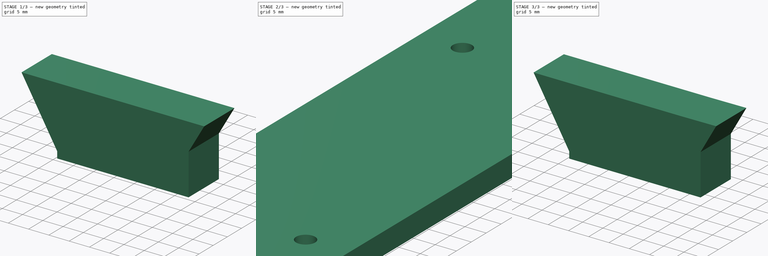
[diagram: build sequence overview — one tinted view per stage of 3, left to right]
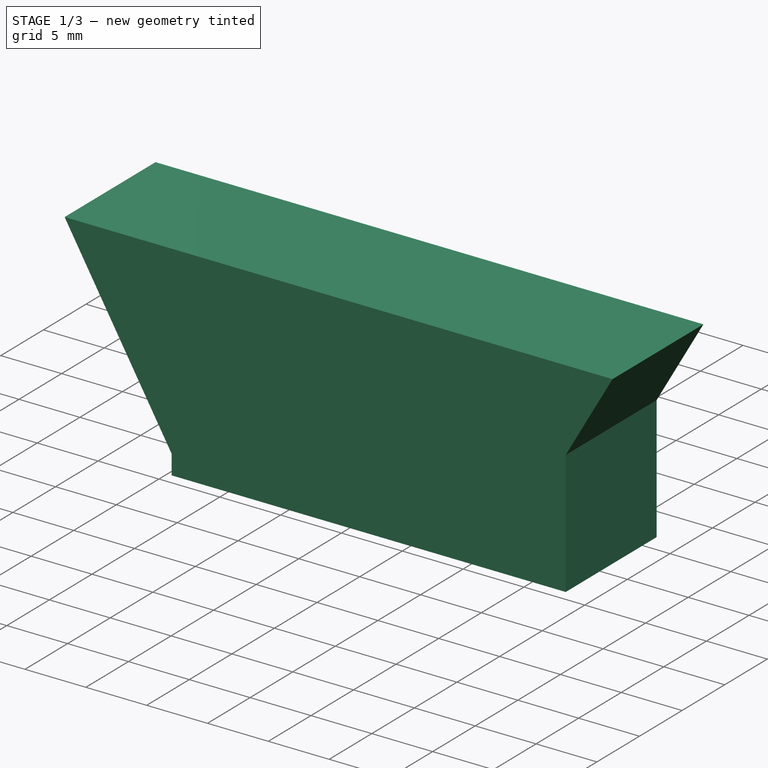
[diagram: stage 1 of 3 — iso view after this stage's code; geometry added in this stage tinted green]
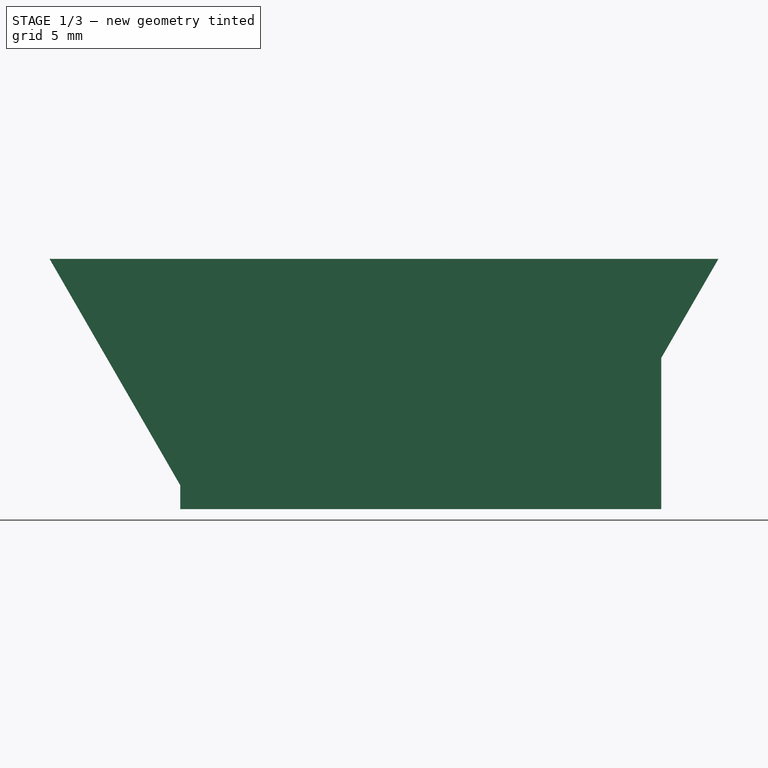
[diagram: stage 1 of 3 — front view after this stage's code; geometry added in this stage tinted green]
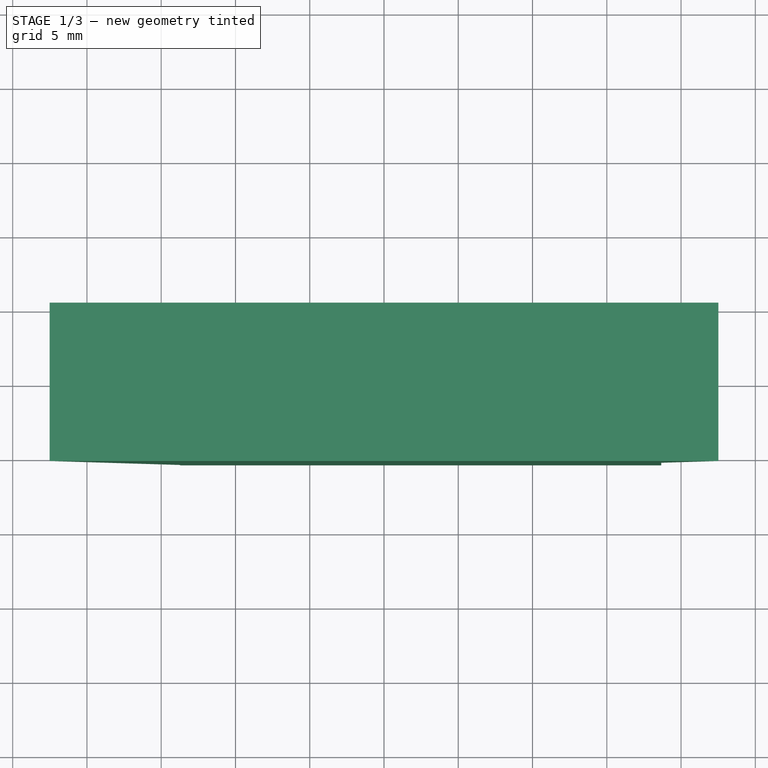
[diagram: stage 1 of 3 — top view after this stage's code; geometry added in this stage tinted green]
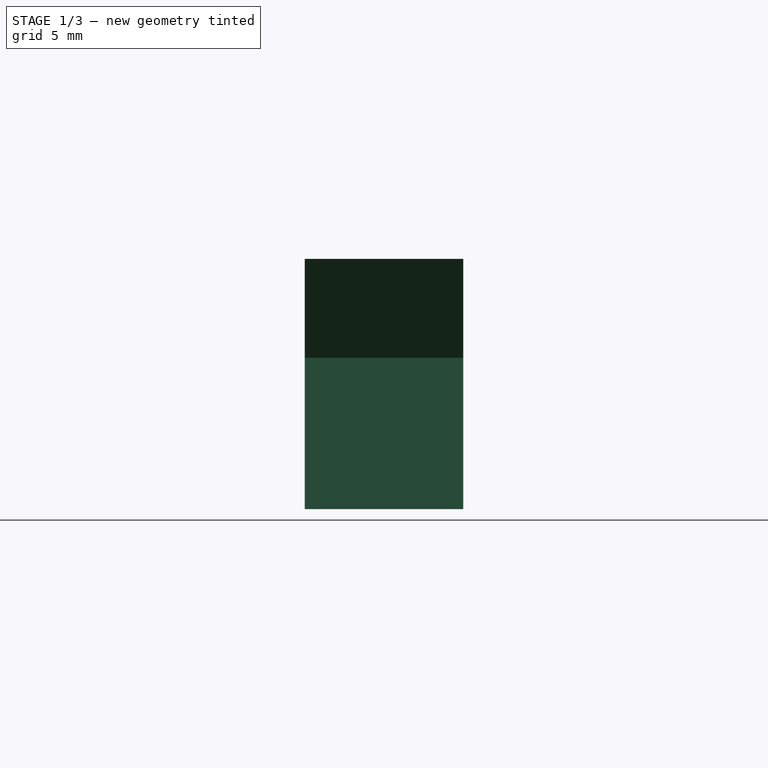
[diagram: stage 1 of 3 — right view after this stage's code; geometry added in this stage tinted green]
FCSTD DOCUMENT  (FreeCAD 1.0R39109 (Git))
Label: Telrad plate_New
License: All rights reserved
LicenseURL: https://en.wikipedia.org/wiki/All_rights_reserved
objects: Sketcher::SketchObject×6, PartDesign::Pad×5, PartDesign::Body×2, PartDesign::Hole×1
note: 32 computed .brp shape members not serialized (recipe doc carries the construction recipe); baked Part::Feature solids carry a one-line shape summary decoded from their .brp

FEATURE [PartDesign::Body] Body
  AllowCompound = false
  Group = -> [Sketch,Pad,Sketch005,Hole]
  Origin = -> Origin
  Tip = -> Hole
FEATURE [Sketcher::SketchObject] Sketch007
  ArcFitTolerance = 1e-06
  FullyConstrained = true
  MakeInternals = false
  MapMode = 5
  Placement = pos=(0,0,0) rot=(1,0,0;1.5708rad)
  sketch-geometry (8):
    g0: LineSegment StartX=-13.716 StartY=1.6002 StartZ=0 EndX=-13.716 EndY=16.8402 EndZ=0
    g1: LineSegment StartX=-13.716 StartY=16.8402 StartZ=0 EndX=-22.5148 EndY=16.8402 EndZ=0
    g2: LineSegment StartX=-22.5148 StartY=16.8402 StartZ=0 EndX=-13.716 EndY=1.6002 EndZ=0
    g3: Circle [constr] CenterX=-18.1154 CenterY=9.2202 CenterZ=0 NormalX=0 NormalY=0 NormalZ=1 AngleXU=0 Radius=8.79882
    g4: LineSegment StartX=13.716 StartY=1.6002 StartZ=0 EndX=22.5148 EndY=16.8402 EndZ=0
    g5: LineSegment StartX=22.5148 StartY=16.8402 StartZ=0 EndX=13.716 EndY=16.8402 EndZ=0
    g6: LineSegment StartX=13.716 StartY=16.8402 StartZ=0 EndX=13.716 EndY=1.6002 EndZ=0
    g7: Circle [constr] CenterX=18.1154 CenterY=9.2202 CenterZ=0 NormalX=0 NormalY=0 NormalZ=1 AngleXU=0 Radius=8.79882
  constraints (24):
    c: Coincident(g0,g1)
    c: Coincident(g1,g2)
    c: Coincident(g2,g0)
    c: PointOnObject(g0,g3)
    c: PointOnObject(g1,g3)
    c: PointOnObject(g2,g3)
    c: Angle(g1,g0) = 1.5708
    c: Angle(g0,g2) = 0.523599
    c: DistanceX(g0,g-1) = 13.716
    c: DistanceX(g0,g-1) = 13.716
    c: DistanceY(g-1,g0) = 1.6002
    c: Distance(g0,g0) = 15.24
    c: Coincident(g4,g5)
    c: Coincident(g5,g6)
    c: Coincident(g6,g4)
    c: PointOnObject(g4,g7)
    c: PointOnObject(g5,g7)
    c: PointOnObject(g6,g7)
    c: Angle(g6,g5) = 1.5708
    c: Angle(g4,g6) = 0.523599
    c: Distance(g6,g6) = 15.24
    c: DistanceX(g-1,g5) = 13.716
    c: DistanceX(g-1,g4) = 13.716
    c: DistanceY(g-1,g4) = 1.6002
FEATURE [Sketcher::SketchObject] Sketch006
  ArcFitTolerance = 1e-06
  ExternalGeometry = -> [Sketch007]
  FullyConstrained = true
  MakeInternals = false
  MapMode = 5
  Placement = pos=(0,0,0) rot=(1,0,0;1.5708rad)
  sketch-geometry (4):
    g0: LineSegment StartX=-13.716 StartY=16.8402 StartZ=0 EndX=-13.716 EndY=0 EndZ=0
    g1: LineSegment StartX=-13.716 StartY=0 StartZ=0 EndX=18.669 EndY=0 EndZ=0
    g2: LineSegment StartX=18.669 StartY=0 StartZ=0 EndX=18.669 EndY=16.8402 EndZ=0
    g3: LineSegment StartX=18.669 StartY=16.8402 StartZ=0 EndX=-13.716 EndY=16.8402 EndZ=0
  constraints (12):
    c: Coincident(g0,g1)
    c: Coincident(g1,g2)
    c: Coincident(g2,g3)
    c: Coincident(g3,g0)
    c: Vertical(g0)
    c: Vertical(g2)
    c: Horizontal(g1)
    c: Horizontal(g3)
    c: PointOnObject(g1,g-1)
    c: DistanceY(g-3,g0) = 0
    c: Distance(g3) = 32.385
    c: DistanceX(g0,g-1) = 13.716
FEATURE [PartDesign::Pad] Pad005
  Direction = (0,-1,0)
  Length = 10.668
  Length2 = 10
  Midplane = true
  Placement = pos=(0,0,0) rot=(1,0,0;1.5708rad)
  Profile = -> Sketch006
  ReferenceAxis = -> Sketch006 [N_Axis]
  Refine = true
  Suppressed = false
  Type = 0
FEATURE [PartDesign::Pad] Pad006
  BaseFeature = -> Pad005
  Direction = (0,-1,0)
  Length = 10.668
  Length2 = 10
  Midplane = true
  Placement = pos=(0,0,0) rot=(1,0,0;1.5708rad)
  Profile = -> Sketch007
  ReferenceAxis = -> Sketch007 [N_Axis]
  Refine = true
  Suppressed = false
  Type = 0
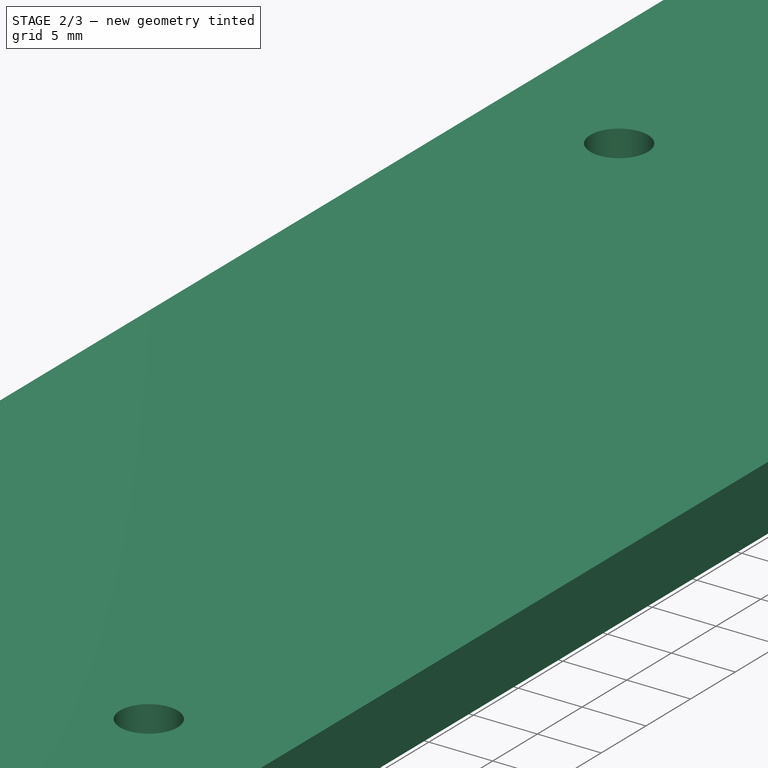
[diagram: stage 2 of 3 — iso view after this stage's code; geometry added in this stage tinted green]
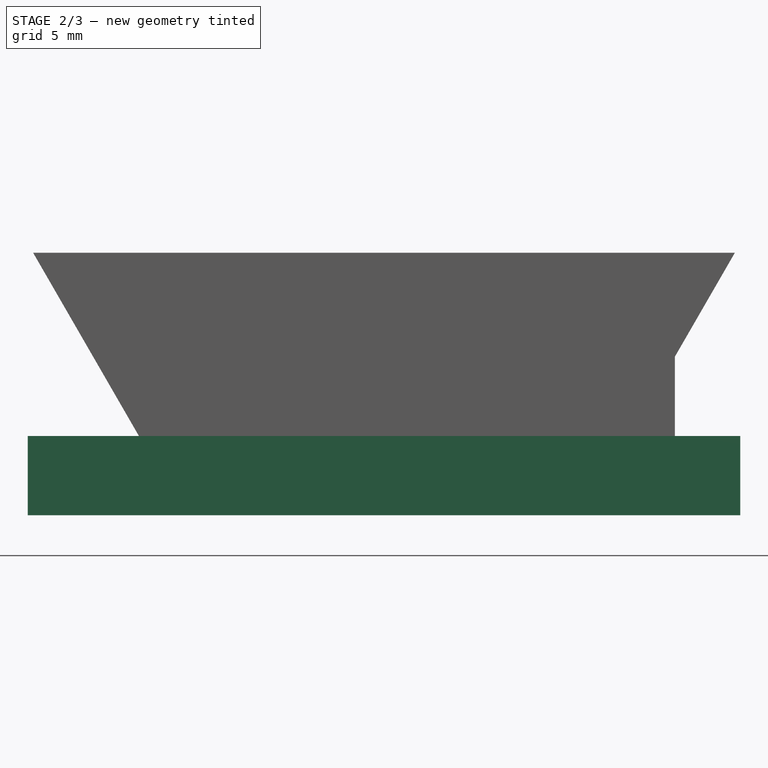
[diagram: stage 2 of 3 — front view after this stage's code; geometry added in this stage tinted green]
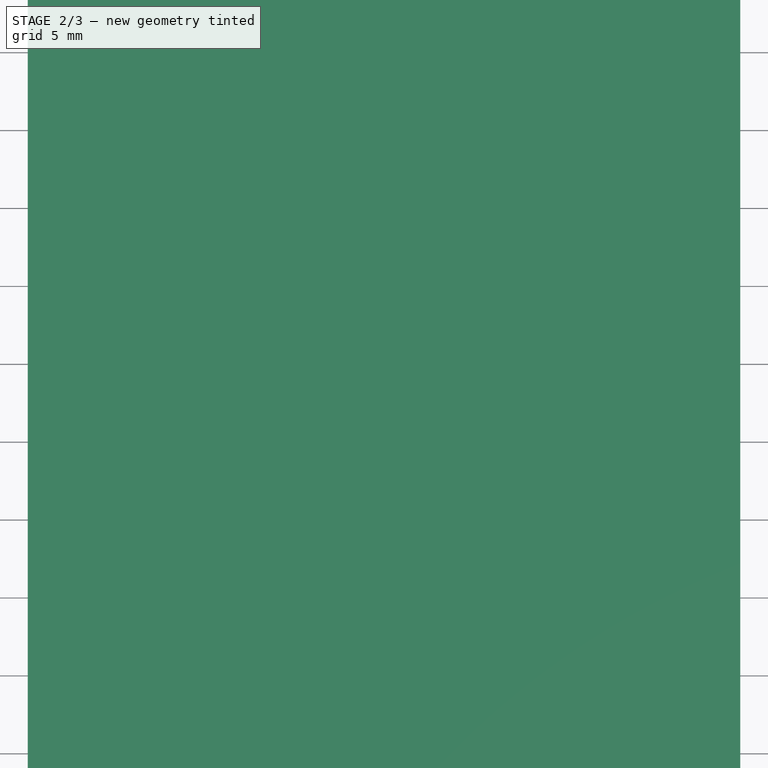
[diagram: stage 2 of 3 — top view after this stage's code; geometry added in this stage tinted green]
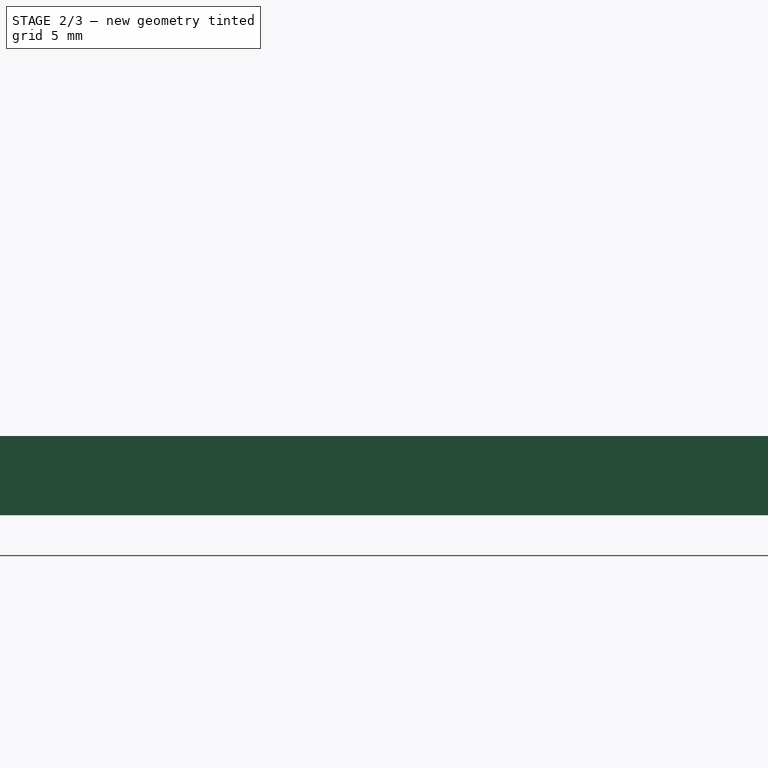
[diagram: stage 2 of 3 — right view after this stage's code; geometry added in this stage tinted green]
FEATURE [Sketcher::SketchObject] Sketch
  ArcFitTolerance = 1e-06
  AttachmentSupport = -> [XY_Plane]
  FullyConstrained = true
  MakeInternals = false
  MapMode = 5
  sketch-geometry (4):
    g0: LineSegment StartX=-22.86 StartY=6.35 StartZ=0 EndX=-22.86 EndY=-159.258 EndZ=0
    g1: LineSegment StartX=-22.86 StartY=-159.258 StartZ=0 EndX=22.86 EndY=-159.258 EndZ=0
    g2: LineSegment StartX=22.86 StartY=-159.258 StartZ=0 EndX=22.86 EndY=6.35 EndZ=0
    g3: LineSegment StartX=22.86 StartY=6.35 StartZ=0 EndX=-22.86 EndY=6.35 EndZ=0
  constraints (12):
    c: Coincident(g0,g1)
    c: Coincident(g1,g2)
    c: Coincident(g2,g3)
    c: Coincident(g3,g0)
    c: Vertical(g0)
    c: Vertical(g2)
    c: Horizontal(g1)
    c: Horizontal(g3)
    c: Distance(g3,g3) = 45.72
    c: Distance(g2,g2) = 165.608
    c: DistanceX(g2) = 22.86
    c: DistanceY(g-1,g0) = 6.35
FEATURE [PartDesign::Pad] Pad
  Direction = (0,0,1)
  Length = 5.08
  Length2 = 10
  Profile = -> Sketch
  ReferenceAxis = -> Sketch [N_Axis]
  Refine = true
  Suppressed = false
  Type = 0
FEATURE [PartDesign::Body] Body001
  AllowCompound = false
  Origin = -> Origin001
  Placement = pos=(0,-147.32,0) rot=(0,0,1;0rad)
FEATURE [Sketcher::SketchObject] Sketch005
  ArcFitTolerance = 1e-06
  ExternalGeometry = -> [Sketch]
  FullyConstrained = true
  MakeInternals = false
  MapMode = 5
  Placement = pos=(0,0,0) rot=(1,0,0;3.14159rad)
  sketch-geometry (4):
    g0: Circle CenterX=-12.7 CenterY=120.904 CenterZ=0 NormalX=0 NormalY=0 NormalZ=1 AngleXU=0 Radius=1.905
    g1: Circle CenterX=-12.7 CenterY=32.004 CenterZ=0 NormalX=0 NormalY=0 NormalZ=1 AngleXU=0 Radius=1.905
    g2: Circle CenterX=12.7 CenterY=120.904 CenterZ=0 NormalX=0 NormalY=0 NormalZ=1 AngleXU=0 Radius=1.905
    g3: Circle CenterX=12.7 CenterY=32.004 CenterZ=0 NormalX=0 NormalY=0 NormalZ=1 AngleXU=0 Radius=1.905
  constraints (12):
    c: Diameter(g3) = 3.81
    c: Diameter(g1) = 3.81
    c: Diameter(g0) = 3.81
    c: Diameter(g2) = 3.81
    c: DistanceY(g2,g0) = 0
    c: DistanceY(g1,g3) = 0
    c: DistanceX(g0,g2) = 25.4
    c: DistanceY(g1,g0) = 88.9
    c: DistanceY(g0,g-3) = 38.354
    c: DistanceX(g0,g1) = 0
    c: DistanceX(g3,g2) = 0
    c: DistanceX(g-1,g3) = 12.7
FEATURE [PartDesign::Hole] Hole
  BaseFeature = -> Pad
  CustomThreadClearance = 0
  Depth = 24.9936
  DepthType = 0
  Diameter = 4.5
  DrillForDepth = false
  DrillPoint = 1
  DrillPointAngle = 118
  HoleCutCountersinkAngle = 90
  HoleCutCustomValues = false
  HoleCutDepth = 0
  HoleCutDiameter = 5.4356
  HoleCutType = 0
  ModelThread = false
  Profile = -> Sketch005
  Refine = true
  Suppressed = false
  Tapered = false
  TaperedAngle = 90
  ThreadClass = 0
  ThreadDepth = 24.9936
  ThreadDepthType = 0
  ThreadDirection = 0
  ThreadFit = 0
  ThreadSize = 11
  ThreadType = 1
  Threaded = false
  UseCustomThreadClearance = false
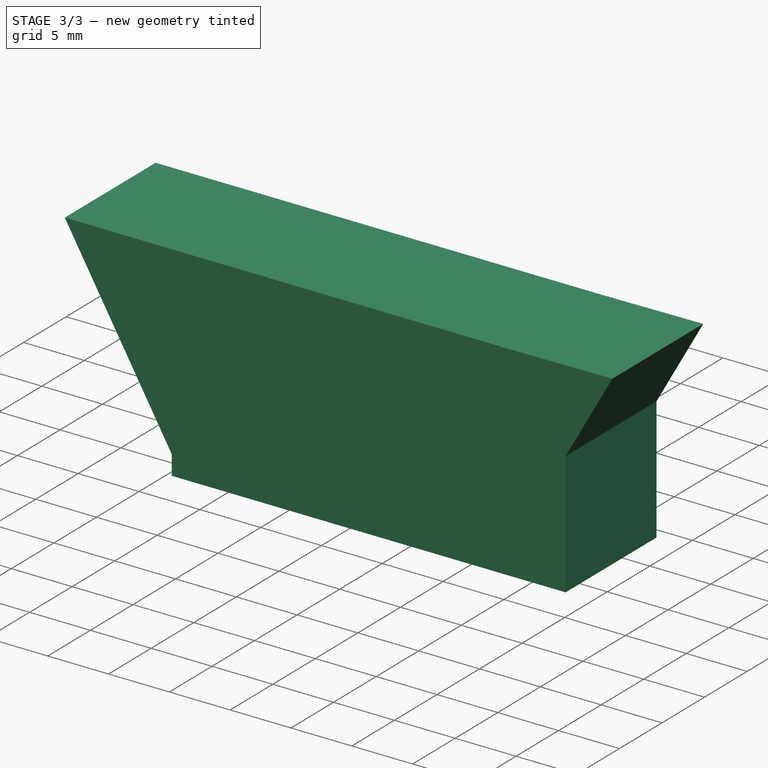
[diagram: stage 3 of 3 — iso view after this stage's code; geometry added in this stage tinted green]
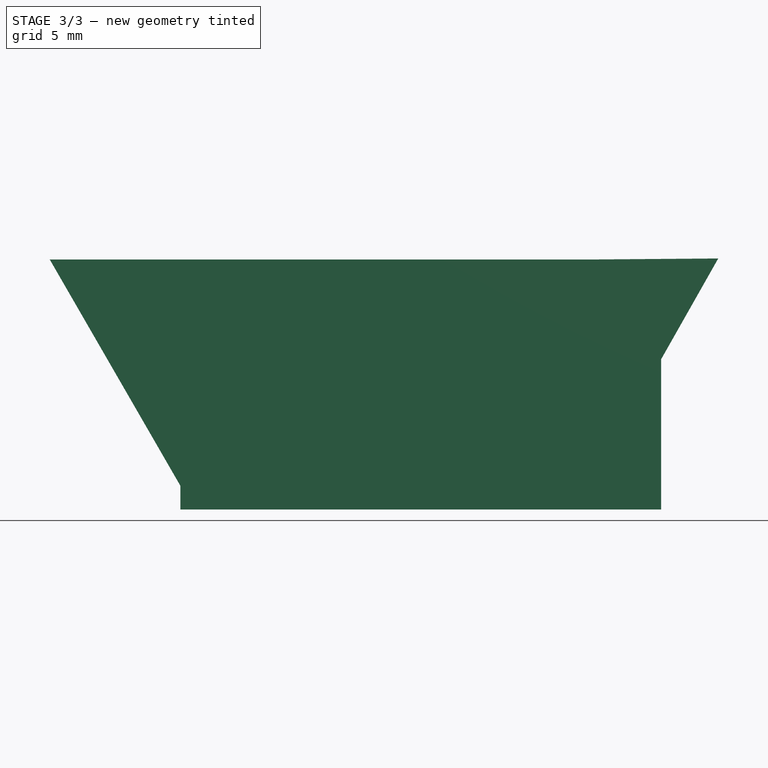
[diagram: stage 3 of 3 — front view after this stage's code; geometry added in this stage tinted green]
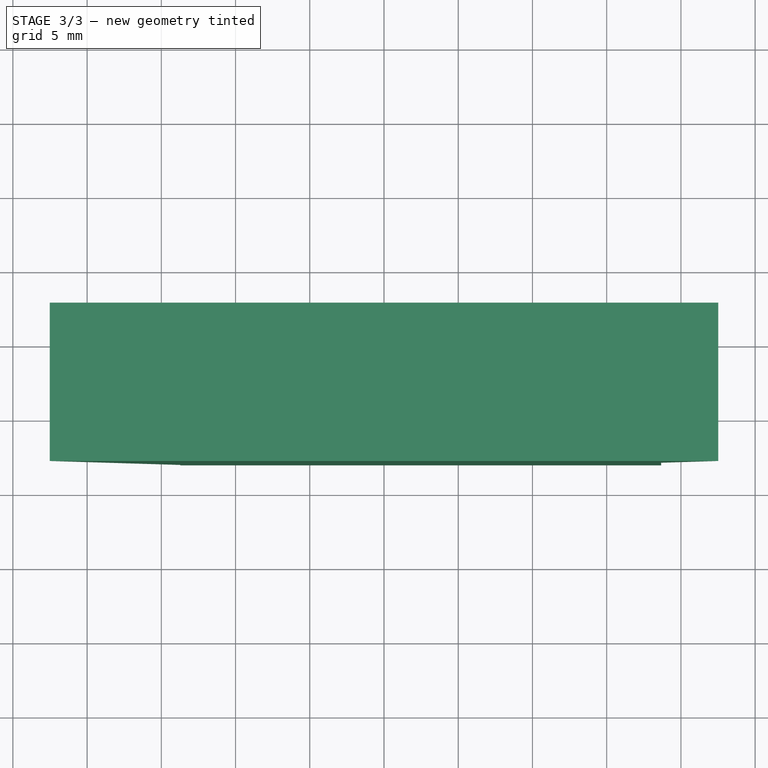
[diagram: stage 3 of 3 — top view after this stage's code; geometry added in this stage tinted green]
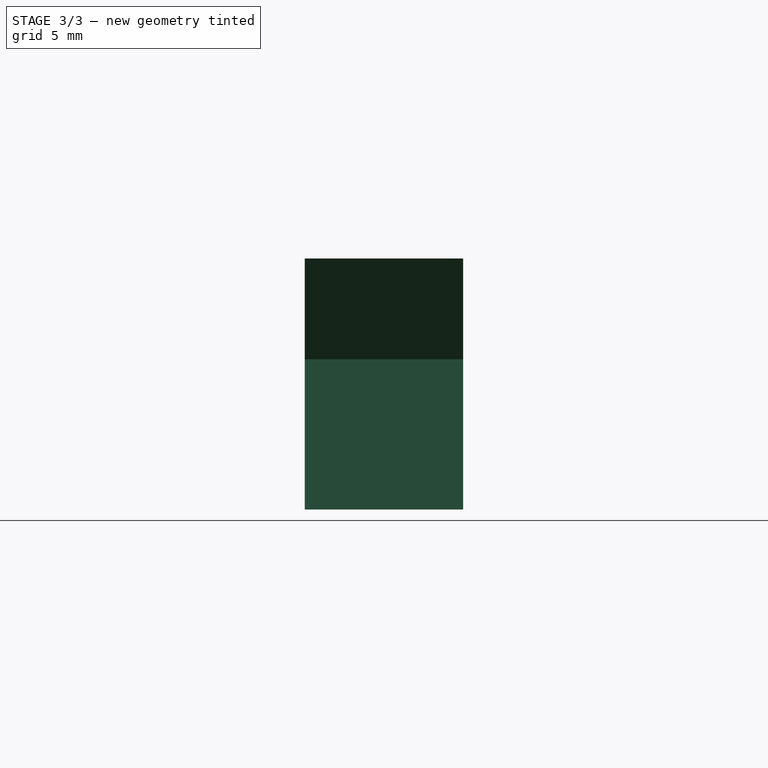
[diagram: stage 3 of 3 — right view after this stage's code; geometry added in this stage tinted green]
FEATURE [Sketcher::SketchObject] Sketch009
  ArcFitTolerance = 1e-06
  AttachmentOffset = pos=(0,0,147.32) rot=(0,0,1;0rad)
  AttachmentSupport = -> [XZ_Plane002]
  ExternalGeometry = -> [Hole,Pad006]
  FullyConstrained = false
  MakeInternals = false
  MapMode = 5
  Placement = pos=(0,-147.32,3.27e-14) rot=(1,0,0;1.5708rad)
  sketch-geometry (8):
    g0: LineSegment StartX=-13.716 StartY=1.6002 StartZ=0 EndX=-13.716 EndY=16.8402 EndZ=0
    g1: LineSegment StartX=-13.716 StartY=16.8402 StartZ=0 EndX=-22.5148 EndY=16.8402 EndZ=0
    g2: LineSegment StartX=-22.5148 StartY=16.8402 StartZ=0 EndX=-13.716 EndY=1.6002 EndZ=0
    g3: Circle [constr] CenterX=-18.1154 CenterY=9.2202 CenterZ=0 NormalX=0 NormalY=0 NormalZ=1 AngleXU=0 Radius=8.79882
    g4: LineSegment StartX=13.8383 StartY=1.6002 StartZ=0 EndX=22.5142 EndY=16.9106 EndZ=0
    g5: LineSegment StartX=22.5142 StartY=16.9106 StartZ=0 EndX=13.7156 EndY=16.8397 EndZ=0
    g6: LineSegment StartX=13.7156 StartY=16.8397 StartZ=0 EndX=13.8383 EndY=1.6002 EndZ=0
    g7: Circle [constr] CenterX=18.1763 CenterY=9.25538 CenterZ=0 NormalX=0 NormalY=0 NormalZ=1 AngleXU=0 Radius=8.79882
  constraints (22):
    c: Coincident(g0,g1)
    c: Coincident(g1,g2)
    c: Coincident(g2,g0)
    c: PointOnObject(g0,g3)
    c: PointOnObject(g1,g3)
    c: PointOnObject(g2,g3)
    c: Angle(g1,g0) = 1.5708
    c: Angle(g0,g2) = 0.523599
    c: DistanceX(g0,g-1) = 13.716
    c: DistanceX(g0,g-1) = 13.716
    c: DistanceY(g-1,g0) = 1.6002
    c: Distance(g0,g0) = 15.24
    c: Coincident(g4,g5)
    c: Coincident(g5,g6)
    c: Coincident(g6,g4)
    c: PointOnObject(g4,g7)
    c: PointOnObject(g5,g7)
    c: PointOnObject(g6,g7)
    c: Angle(g6,g5) = 1.5708
    c: Angle(g4,g6) = 0.523599
    c: Distance(g6,g6) = 15.24
    c: DistanceY(g-3,g4) = 1.6002
FEATURE [Sketcher::SketchObject] Sketch008
  ArcFitTolerance = 1e-06
  AttachmentOffset = pos=(0,0,147.32) rot=(0,0,1;0rad)
  AttachmentSupport = -> [XZ_Plane002]
  ExternalGeometry = -> [Sketch009]
  FullyConstrained = true
  MakeInternals = false
  MapMode = 5
  Placement = pos=(0,-147.32,3.27e-14) rot=(1,0,0;1.5708rad)
  sketch-geometry (4):
    g0: LineSegment StartX=-13.716 StartY=16.8402 StartZ=0 EndX=-13.716 EndY=0 EndZ=0
    g1: LineSegment StartX=-13.716 StartY=0 StartZ=0 EndX=18.669 EndY=0 EndZ=0
    g2: LineSegment StartX=18.669 StartY=0 StartZ=0 EndX=18.669 EndY=16.8402 EndZ=0
    g3: LineSegment StartX=18.669 StartY=16.8402 StartZ=0 EndX=-13.716 EndY=16.8402 EndZ=0
  constraints (12):
    c: Coincident(g0,g1)
    c: Coincident(g1,g2)
    c: Coincident(g2,g3)
    c: Coincident(g3,g0)
    c: Vertical(g0)
    c: Vertical(g2)
    c: Horizontal(g1)
    c: Horizontal(g3)
    c: PointOnObject(g1,g-1)
    c: DistanceY(g-3,g0) = 0
    c: Distance(g3) = 32.385
    c: DistanceX(g0,g-1) = 13.716
FEATURE [PartDesign::Pad] Pad007
  Direction = (0,-1,2e-16)
  Length = 10.668
  Length2 = 10
  Placement = pos=(0,0,0) rot=(1,0,0;1.5708rad)
  Profile = -> Sketch008
  ReferenceAxis = -> Sketch008 [N_Axis]
  Refine = true
  Suppressed = false
  Type = 0
FEATURE [PartDesign::Pad] Pad008
  BaseFeature = -> Pad007
  Direction = (0,-1,2e-16)
  Length = 10.668
  Length2 = 10
  Placement = pos=(0,0,0) rot=(1,0,0;1.5708rad)
  Profile = -> Sketch009
  ReferenceAxis = -> Sketch009 [N_Axis]
  Refine = true
  Suppressed = false
  Type = 0
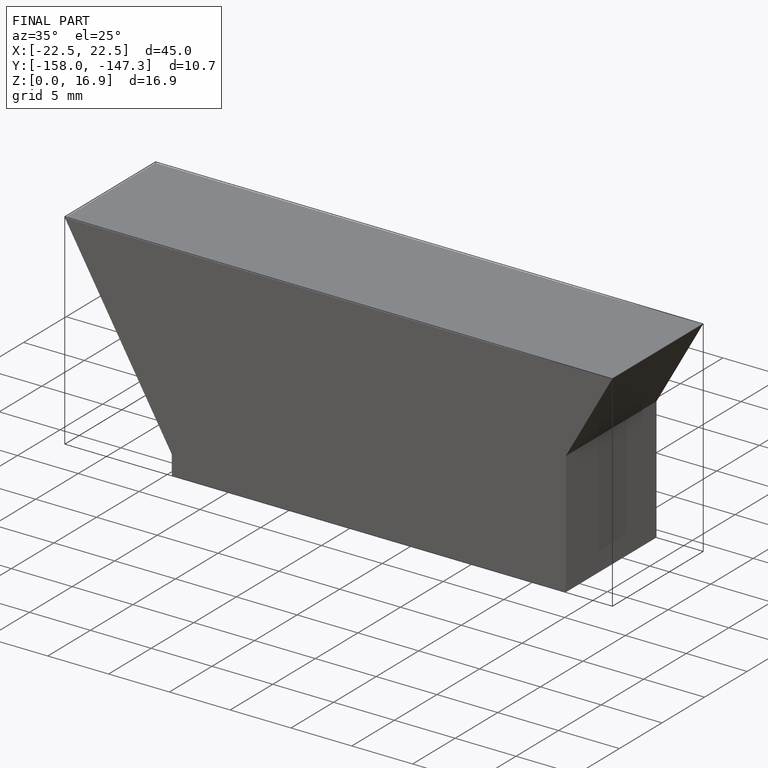
[diagram: finished part — iso view with bounding-box wireframe]
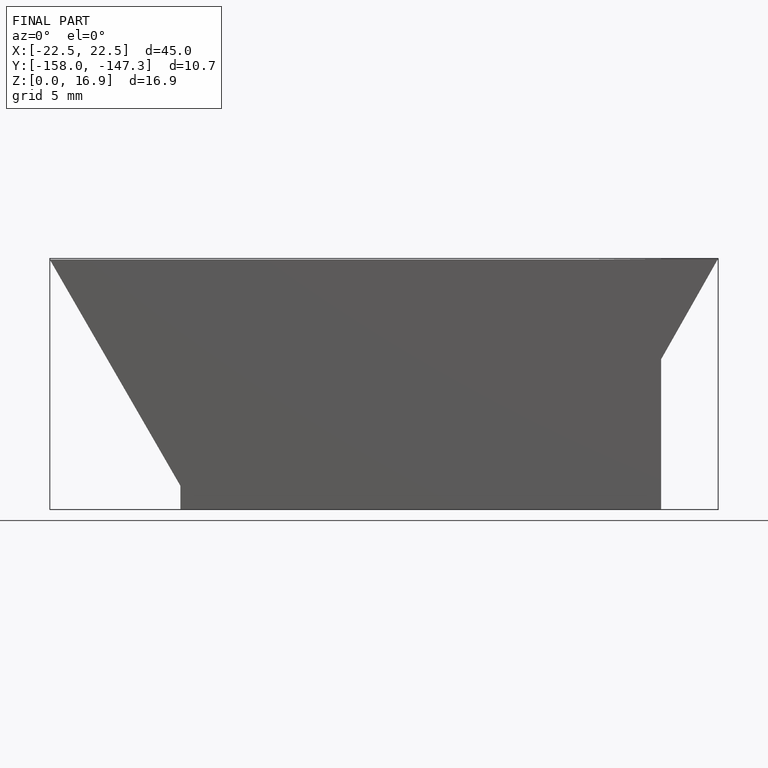
[diagram: finished part — front view with bounding-box wireframe]
